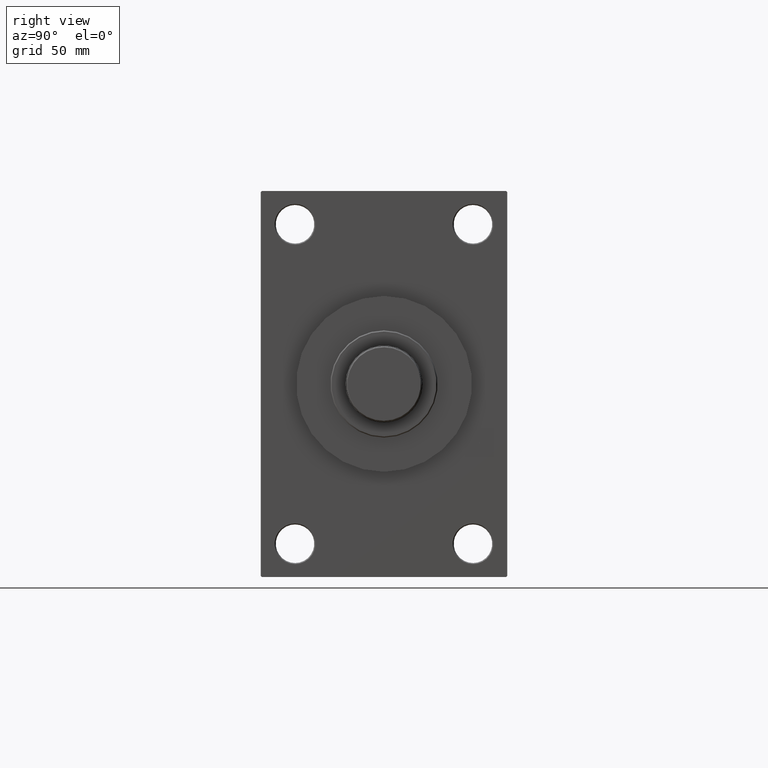
[diagram: clean part render]
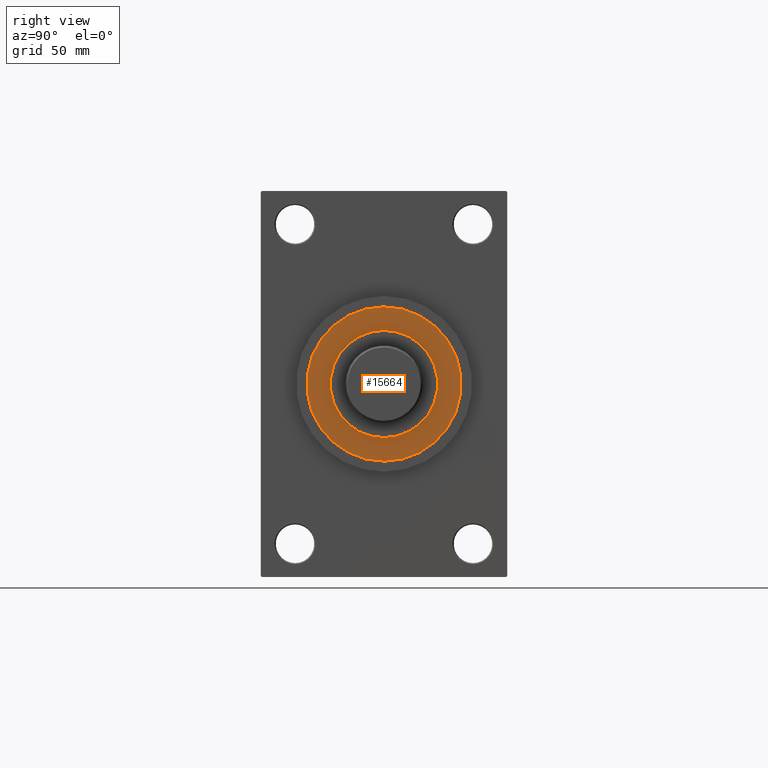
[diagram: same view with one face highlighted and labeled with its STEP entity id]
A machine part, right view. The second image highlights one B-rep face of the part: STEP entity #15664.
In plain terms, the highlighted planar face has unit normal (1, 0, 0).
Its self-contained STEP definition (entity closure, byte-faithful):
#1907 = VERTEX_POINT ( 'NONE', #48142 ) ;
#2967 = DIRECTION ( 'NONE',  ( 0.000000000000000000, 0.000000000000000000, 1.000000000000000000 ) ) ;
#3061 = DIRECTION ( 'NONE',  ( 1.000000000000000000, 0.000000000000000000, -0.000000000000000000 ) ) ;
#3082 = EDGE_LOOP ( 'NONE', ( #44705, #44609 ) ) ;
#3444 = DIRECTION ( 'NONE',  ( 0.000000000000000000, 0.000000000000000000, 1.000000000000000000 ) ) ;
#3675 = CARTESIAN_POINT ( 'NONE',  ( 0.000000000000000000, 0.000000000000000000, 43.25999999999999801 ) ) ;
#5169 = EDGE_LOOP ( 'NONE', ( #12685, #14865 ) ) ;
#6151 = AXIS2_PLACEMENT_3D ( 'NONE', #15812, #26762, #9231 ) ;
#6371 = AXIS2_PLACEMENT_3D ( 'NONE', #29008, #2967, #14153 ) ;
#6727 = DIRECTION ( 'NONE',  ( 0.000000000000000000, 0.000000000000000000, 1.000000000000000000 ) ) ;
#6922 = EDGE_CURVE ( 'NONE', #1907, #47349, #10296, .T. ) ;
#8981 = CARTESIAN_POINT ( 'NONE',  ( 36.00000000000000000, 4.408728476930470856E-15, 43.25999999999999801 ) ) ;
#9231 = DIRECTION ( 'NONE',  ( 1.000000000000000000, 0.000000000000000000, 0.000000000000000000 ) ) ;
#10296 = CIRCLE ( 'NONE', #23501, 25.00000000000000000 ) ;
#12685 = ORIENTED_EDGE ( 'NONE', *, *, #47563, .T. ) ;
#13747 = VERTEX_POINT ( 'NONE', #47031 ) ;
#14153 = DIRECTION ( 'NONE',  ( 1.000000000000000000, 0.000000000000000000, 0.000000000000000000 ) ) ;
#14865 = ORIENTED_EDGE ( 'NONE', *, *, #24219, .T. ) ;
#14869 = DIRECTION ( 'NONE',  ( 1.000000000000000000, 0.000000000000000000, 0.000000000000000000 ) ) ;
#15664 = ADVANCED_FACE ( 'NONE', ( #36895, #32995 ), #36401, .T. ) ;
#15812 = CARTESIAN_POINT ( 'NONE',  ( 0.000000000000000000, 0.000000000000000000, 43.25999999999999801 ) ) ;
#17671 = AXIS2_PLACEMENT_3D ( 'NONE', #3675, #3444, #40695 ) ;
#18271 = EDGE_CURVE ( 'NONE', #47349, #1907, #43381, .T. ) ;
#19228 = CARTESIAN_POINT ( 'NONE',  ( 0.000000000000000000, 0.000000000000000000, 43.25999999999999801 ) ) ;
#23501 = AXIS2_PLACEMENT_3D ( 'NONE', #19228, #44824, #14869 ) ;
#24219 = EDGE_CURVE ( 'NONE', #45966, #13747, #27123, .T. ) ;
#24739 = CARTESIAN_POINT ( 'NONE',  ( 25.00000000000000000, 3.061616997868383043E-15, 43.25999999999999801 ) ) ;
#26762 = DIRECTION ( 'NONE',  ( 0.000000000000000000, 0.000000000000000000, 1.000000000000000000 ) ) ;
#27123 = CIRCLE ( 'NONE', #6151, 36.00000000000000000 ) ;
#29008 = CARTESIAN_POINT ( 'NONE',  ( 0.000000000000000000, 0.000000000000000000, 43.25999999999999801 ) ) ;
#32035 = CARTESIAN_POINT ( 'NONE',  ( 0.000000000000000000, 0.000000000000000000, 43.25999999999999801 ) ) ;
#32995 = FACE_OUTER_BOUND ( 'NONE', #5169, .T. ) ;
#36275 = AXIS2_PLACEMENT_3D ( 'NONE', #32035, #6727, #3061 ) ;
#36401 = PLANE ( 'NONE',  #36275 ) ;
#36895 = FACE_BOUND ( 'NONE', #3082, .T. ) ;
#40695 = DIRECTION ( 'NONE',  ( 1.000000000000000000, 0.000000000000000000, 0.000000000000000000 ) ) ;
#42147 = CIRCLE ( 'NONE', #6371, 36.00000000000000000 ) ;
#43381 = CIRCLE ( 'NONE', #17671, 25.00000000000000000 ) ;
#44609 = ORIENTED_EDGE ( 'NONE', *, *, #18271, .F. ) ;
#44705 = ORIENTED_EDGE ( 'NONE', *, *, #6922, .F. ) ;
#44824 = DIRECTION ( 'NONE',  ( 0.000000000000000000, 0.000000000000000000, 1.000000000000000000 ) ) ;
#45966 = VERTEX_POINT ( 'NONE', #8981 ) ;
#47031 = CARTESIAN_POINT ( 'NONE',  ( -36.00000000000000000, 0.000000000000000000, 43.25999999999999801 ) ) ;
#47349 = VERTEX_POINT ( 'NONE', #24739 ) ;
#47563 = EDGE_CURVE ( 'NONE', #13747, #45966, #42147, .T. ) ;
#48142 = CARTESIAN_POINT ( 'NONE',  ( -25.00000000000000000, 0.000000000000000000, 43.25999999999999801 ) ) ;